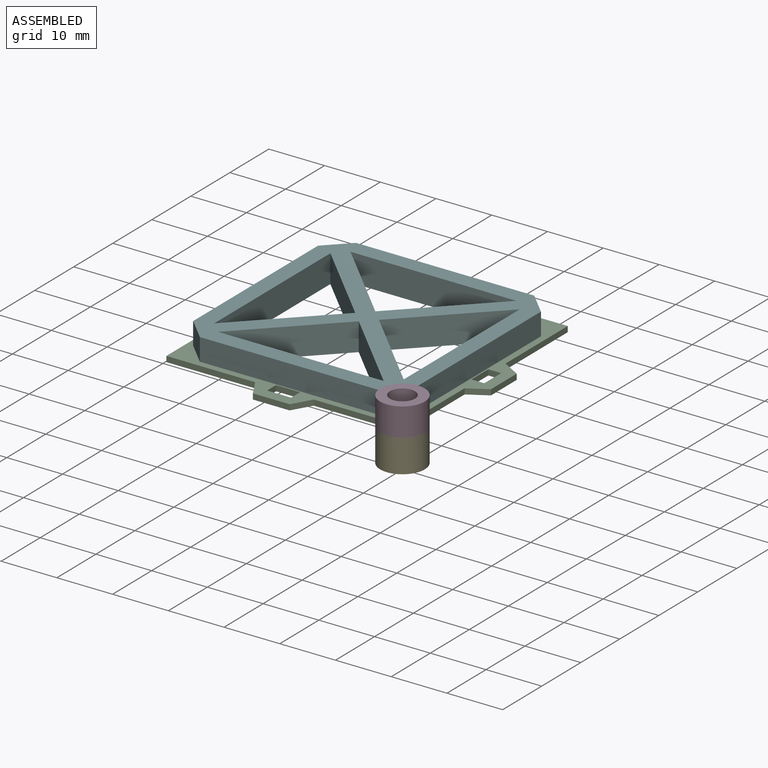
[diagram: assembled view]
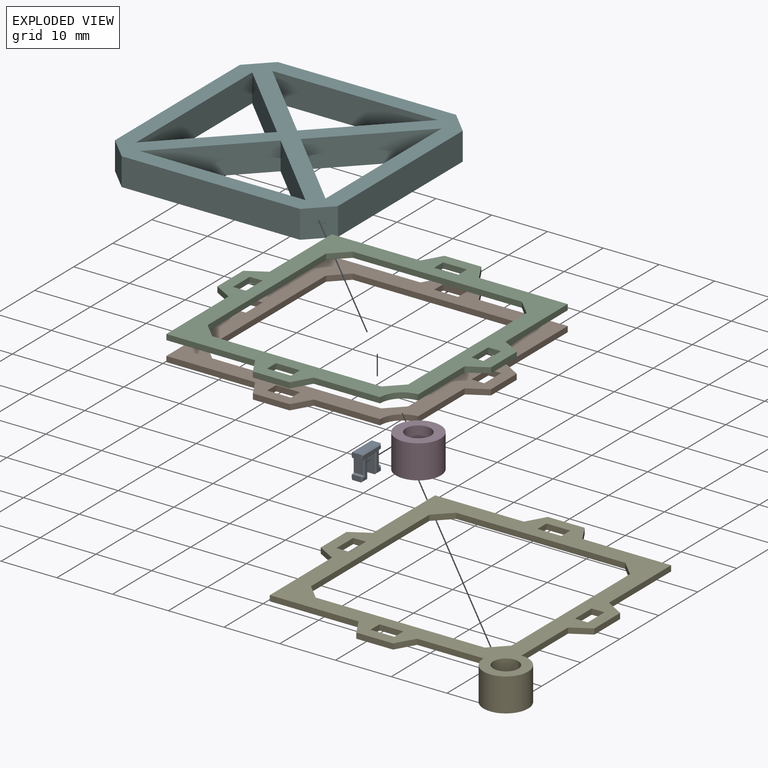
[diagram: exploded view]
GUIDED TOUR — FREECAD ASSEMBLY "Shade"

This assembly has 6 components, labeled P0..P5 below (a component is one placed body or linked part; the same part can appear more than once), held together by 0 modeled joints plus 14 derived contact edges. A joint is a constraint between two components; its type names the relative motion it leaves free:
  CONTACT — a derived adjacency edge — the two components touch in the source model (clearance under 2% of the assembly's diagonal); it is measured from the geometry, not a modeled constraint.
Axis/direction vectors are unit vectors and 'through' points are millimeter coordinates, both in the assembly's world frame.

MATES
  1. CONTACT "contact_0_1": P0 <-> P1, contact direction (0.000, 1.000, 0.000) through (-0.98, 3.16, 1.00) mm (derived from contact, not a modeled constraint)
  2. CONTACT "contact_0_2": P0 <-> P2, contact direction (0.000, 1.000, 0.000) through (-0.98, 3.16, 1.00) mm (derived from contact, not a modeled constraint)
  3. CONTACT "contact_0_3": P0 <-> P3, contact direction (0.000, 0.000, 1.000) through (-0.81, -2.05, 0.00) mm (derived from contact, not a modeled constraint)
  4. CONTACT "contact_0_4": P0 <-> P4, contact direction (-0.707, 0.707, -0.016) through (-0.96, 2.18, 0.90) mm (derived from contact, not a modeled constraint)
  5. CONTACT "contact_1_2": P1 <-> P2, contact direction (0.000, 0.000, 1.000) through (-42.36, 0.00, 0.00) mm (derived from contact, not a modeled constraint)
  6. CONTACT "contact_1_3": P1 <-> P3, contact direction (0.707, -0.707, 0.016) through (-4.00, 0.00, 0.00) mm (derived from contact, not a modeled constraint)
  7. CONTACT "contact_1_4": P1 <-> P4, contact direction (0.707, -0.707, 0.016) through (-42.36, 0.00, 0.00) mm (derived from contact, not a modeled constraint)
  8. CONTACT "contact_1_5": P1 <-> P5, contact direction (-0.707, 0.707, -0.016) through (-3.68, 36.21, 0.00) mm (derived from contact, not a modeled constraint)
  9. CONTACT "contact_2_3": P2 <-> P3, contact direction (0.707, -0.707, 0.016) through (-4.00, 0.00, 0.00) mm (derived from contact, not a modeled constraint)
  10. CONTACT "contact_2_4": P2 <-> P4, contact direction (0.707, -0.707, 0.016) through (-42.36, 0.00, 0.00) mm (derived from contact, not a modeled constraint)
  11. CONTACT "contact_2_5": P2 <-> P5, contact direction (-0.707, 0.707, -0.016) through (-3.68, 36.21, 0.00) mm (derived from contact, not a modeled constraint)
  12. CONTACT "contact_3_4": P3 <-> P4, contact direction (-0.707, 0.707, -0.016) through (-4.00, 0.00, 0.00) mm (derived from contact, not a modeled constraint)
  13. CONTACT "contact_3_5": P3 <-> P5, contact direction (-0.707, 0.707, -0.016) through (-1.04, 4.54, 0.00) mm (derived from contact, not a modeled constraint)
  14. CONTACT "contact_4_5": P4 <-> P5, contact direction (-0.707, 0.707, -0.016) through (-3.68, 36.21, 0.00) mm (derived from contact, not a modeled constraint)

ASSEMBLY ORDER
  1. P4 — the base component [order heuristic]
  2. P1 [order verified]
  3. P2 [order verified]
  4. P5 [order verified]
  5. P0 — core [order heuristic]
  6. P3 [order verified]
(P1, P2, P3, P5 verified with a relaxed clearance tolerance: the source model stores slight part interference there.)
Order-tag legend:
  [order verified] — this step's position reverses a verified removal order: the component was checked to insert without passing through the ones already placed.
  [order heuristic] — the first 2 components form the assembly's core: parts whose collision-free extraction could not be verified, listed in mate-graph order.

Of the 6 components, 5 carry a construction recipe — the FreeCAD feature program (sketches with constraints, then the solid features that consume them) that regenerates the part from scratch, quoted from this document or from the linked companion document it references; the rest are supplied as boundary geometry only. The tour below walks the components in assembly order: each is shown spotlighted twice — in the assembled view, then in the exploded view, where a leader line traces a displaced component back to its assembled socket (components that stay in place when exploded have no leader line; saturated green if recipe-attached, orange if geometry-only; every other component desaturated gray) — followed by its recipe or geometry summary and the mates that hold it.
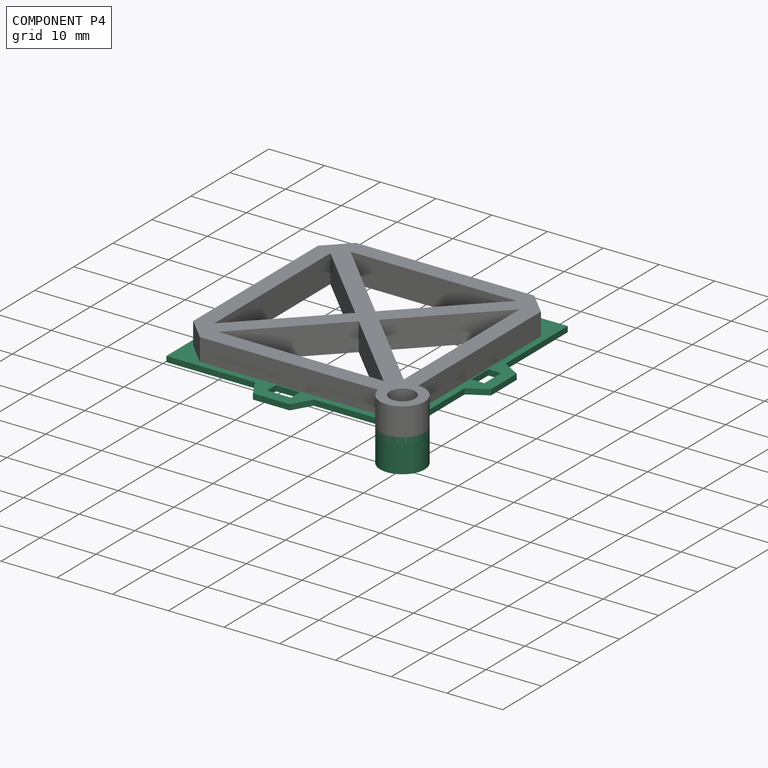
[diagram: component P4 — assembled]
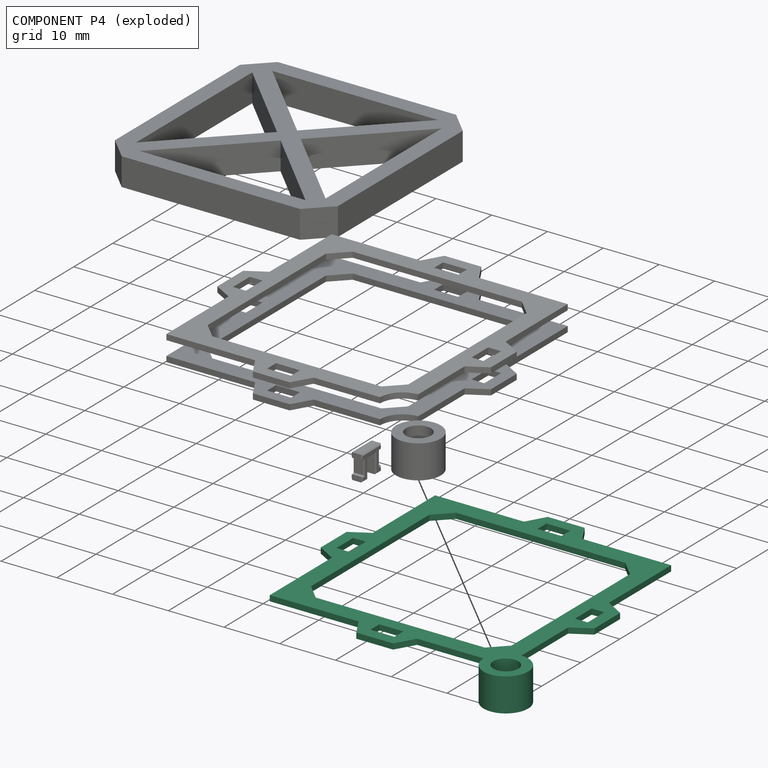
[diagram: component P4 — exploded]
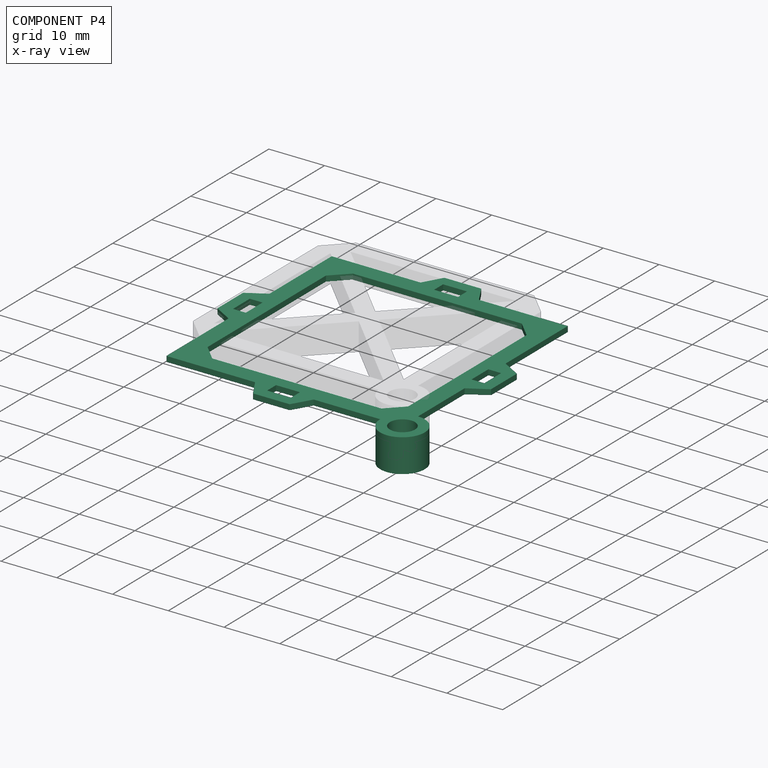
[diagram: component P4 — x-ray view]
COMPONENT P4 — recipe-attached ("ShadeFrameBottom", modeled in this document).
Held by: resting contact with P0 (derived edge); resting contact with P1 (derived edge); resting contact with P2 (derived edge); resting contact with P3 (derived edge); resting contact with P5 (derived edge).
Construction recipe (the document's own serialized feature program — sketch geometry with constraints, then the solid features built on it; lengths are millimeters unless a unit is written):

FEATURE [PartDesign::SubShapeBinder] Binder003
  BindCopyOnChange = 0
  BindMode = 0
  ClaimChildren = false
  Context = -> Body004 [Binder003.]
  Fuse = false
  MakeFace = true
  OffsetFill = false
  OffsetIntersection = false
  OffsetJoinType = 0
  OffsetOpenResult = false
  PartialLoad = false
  Relative = true
  Support = -> [Body002[Sketch008.]]
  _Version = 2
FEATURE [PartDesign::SubShapeBinder] Binder004
  BindCopyOnChange = 0
  BindMode = 0
  ClaimChildren = false
  Context = -> Body004 [Binder004.]
  Fuse = false
  MakeFace = true
  OffsetFill = false
  OffsetIntersection = false
  OffsetJoinType = 0
  OffsetOpenResult = false
  PartialLoad = false
  Relative = true
  Support = -> [Body002[Sketch009.]]
  _Version = 2
FEATURE [PartDesign::CoordinateSystem] Local_CS002  label="LCS_ShaftTop"
  AttacherType = Attacher::AttachEngine3D
  AttachmentSupport = -> [Binder003]
  MapMode = 5
  Placement = pos=(0,0,1) rot=(0,0,1;0rad)
FEATURE [PartDesign::CoordinateSystem] Local_CS003  label="LCS_ShaftBottom"
  AttacherType = Attacher::AttachEngine3D
  AttachmentOffset = pos=(0,0,-6) rot=(0,0,1;0rad)
  AttachmentSupport = -> [Binder003]
  MapMode = 5
  Placement = pos=(0,0,-5) rot=(0,0,1;0rad)
  expr: .AttachmentOffset.Base.z = -<<Dimensions>>.shade_spacer_length
FEATURE [PartDesign::FeatureBase] BaseFeature
  BaseFeature = -> Body002
  Suppressed = false
FEATURE [PartDesign::Pad] Pad007
  BaseFeature = -> BaseFeature
  Direction = (0,0,1)
  Length = 6
  Length2 = 10
  Profile = -> Binder004
  Reversed = true
  Suppressed = false
  Type = 0
  expr: Length = <<Dimensions>>.shade_spacer_length
FEATURE [PartDesign::Hole] Hole001
  BaseFeature = -> Pad007
  CustomThreadClearance = 0
  Depth = 135.934
  DepthType = 1
  Diameter = 4.5
  DrillForDepth = false
  DrillPoint = 1
  DrillPointAngle = 118
  HoleCutCountersinkAngle = 90
  HoleCutCustomValues = false
  HoleCutDepth = 0
  HoleCutDiameter = 6.1
  HoleCutType = 0
  ModelThread = false
  Profile = -> Binder003
  Suppressed = false
  Tapered = false
  TaperedAngle = 90
  ThreadClass = 0
  ThreadDepth = 135.934
  ThreadDepthType = 0
  ThreadDirection = 0
  ThreadFit = 0
  ThreadSize = 11
  ThreadType = 1
  Threaded = false
  UseCustomThreadClearance = false
  expr: ThreadSize = <<Dimensions>>.shade_shaft_type
FEATURE [PartDesign::Body] Body004  label="ShadeFrameBottom"
  AllowCompound = false
  BaseFeature = -> Body002
  Group = -> [BaseFeature,Binder003,Binder004,Pad007,Hole001,Local_CS002,Local_CS003]
  Origin = -> Origin005
  Tip = -> Hole001
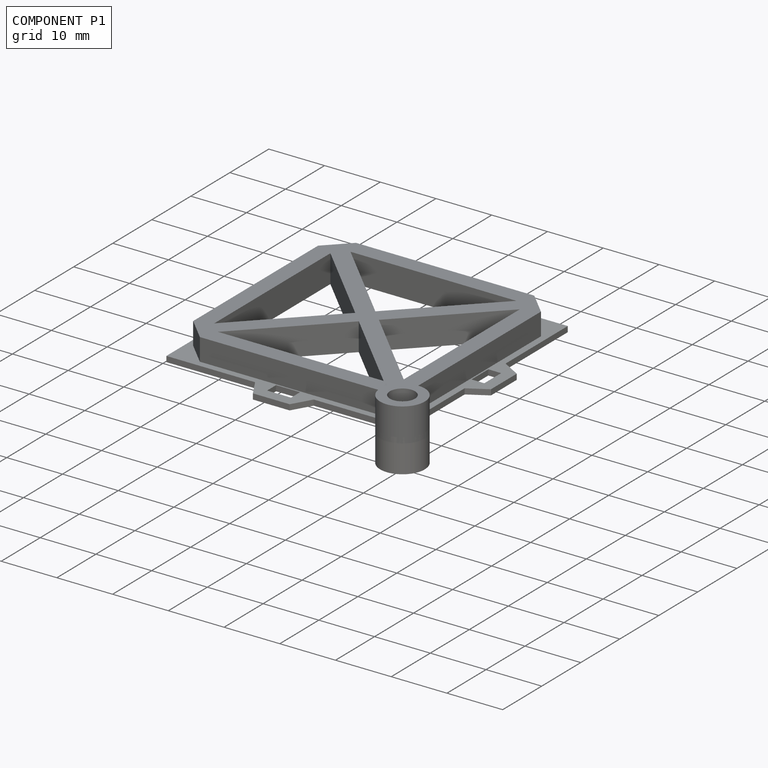
[diagram: component P1 — assembled]
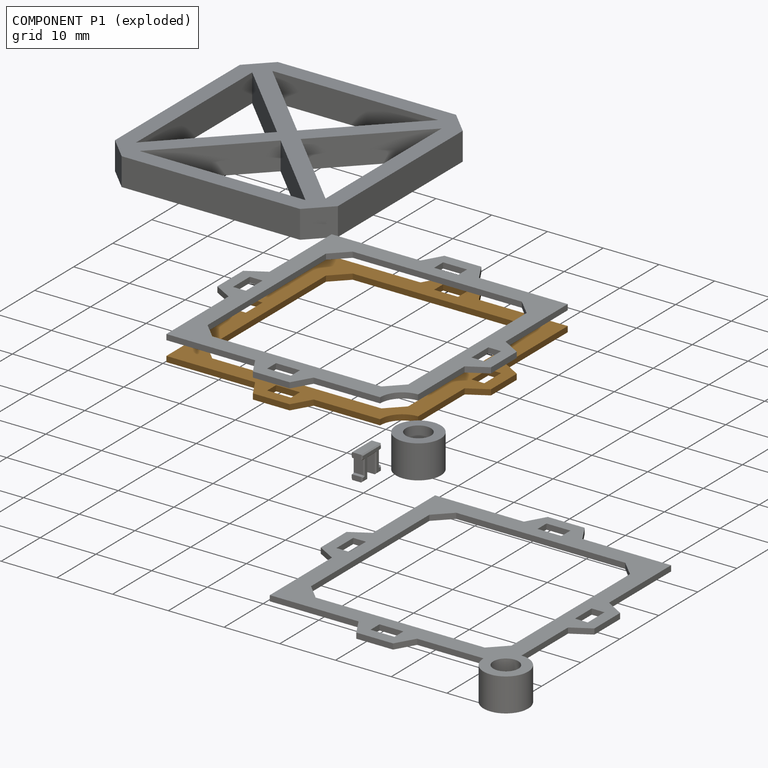
[diagram: component P1 — exploded]
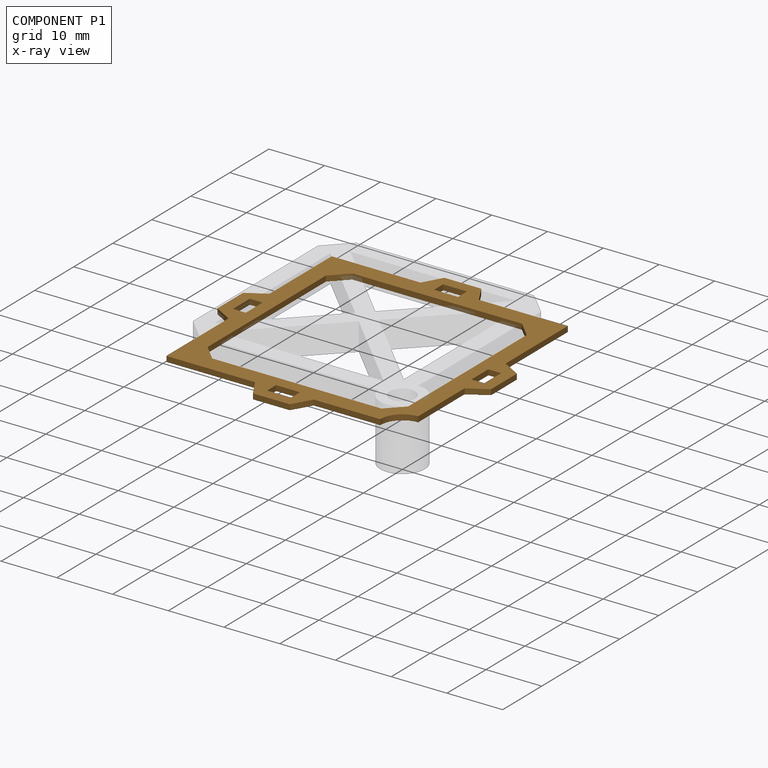
[diagram: component P1 — x-ray view]
COMPONENT P1 — geometry summary ("ShadeFrameTop"; no construction recipe available for this part):
  bounding box: 49.1 x 49.1 x 1.0 mm
  tessellated surface: 320 triangles
  volume: 578 mm^3 (24% of its bounding box)
  symmetry: mirror-symmetric across its z mid-plane
Held by: resting contact with P0 (derived edge); resting contact with P2 (derived edge); resting contact with P3 (derived edge); resting contact with P4 (derived edge); resting contact with P5 (derived edge).
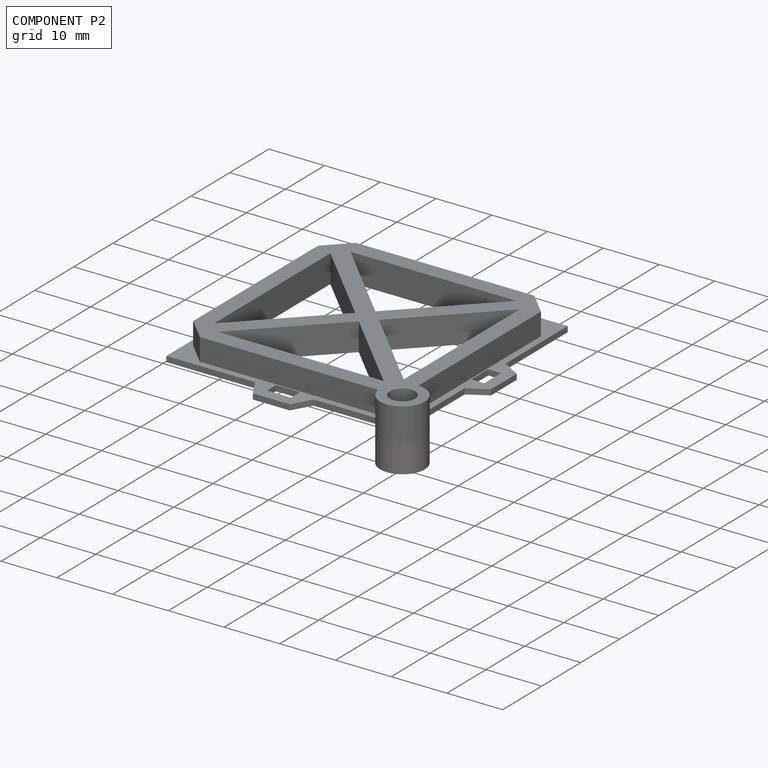
[diagram: component P2 — assembled]
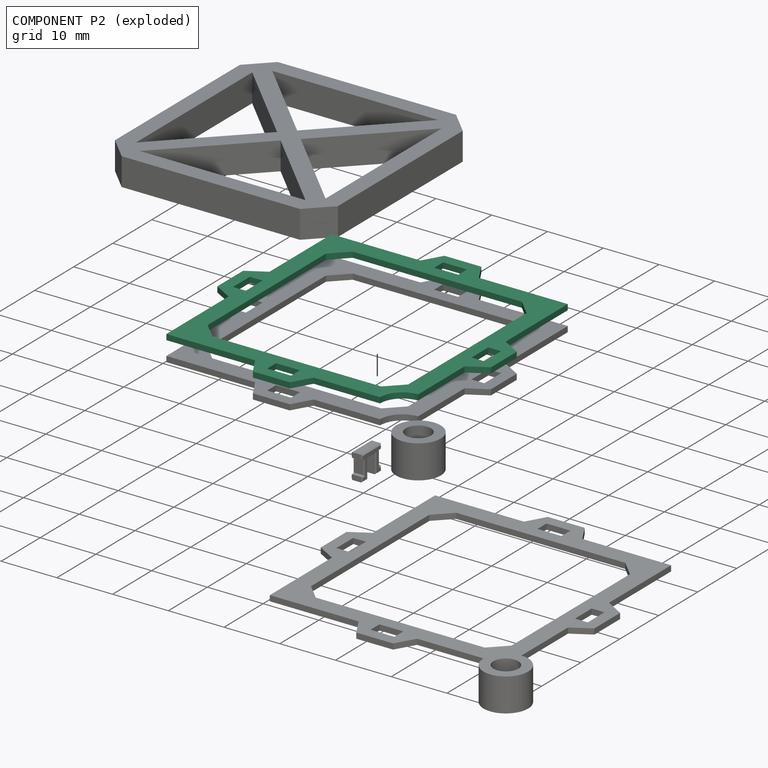
[diagram: component P2 — exploded]
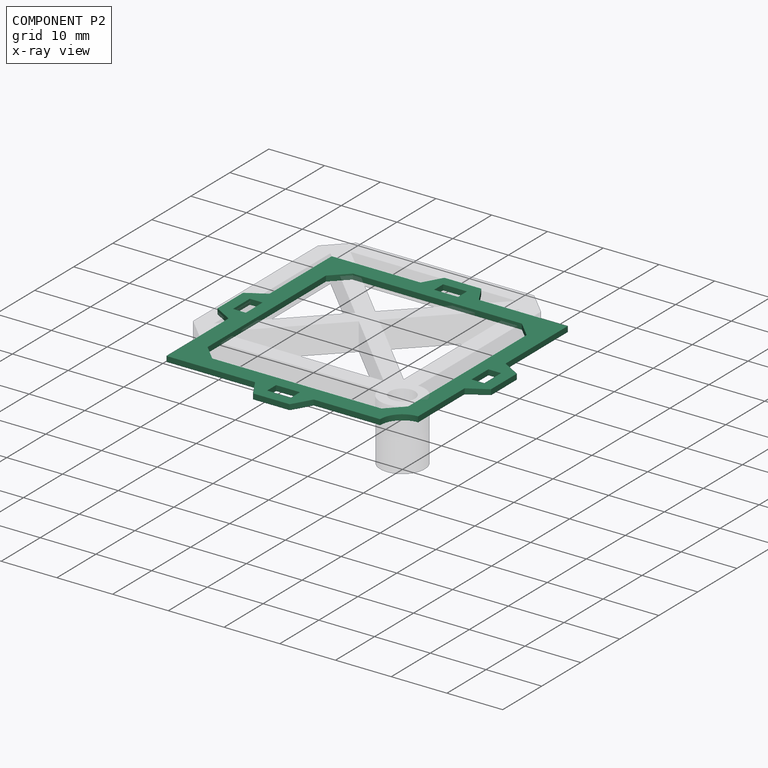
[diagram: component P2 — x-ray view]
COMPONENT P2 — recipe-attached ("ShadeFrameBase", modeled in this document).
Held by: resting contact with P0 (derived edge); resting contact with P1 (derived edge); resting contact with P3 (derived edge); resting contact with P4 (derived edge); resting contact with P5 (derived edge).
Construction recipe (the document's own serialized feature program — sketch geometry with constraints, then the solid features built on it; lengths are millimeters unless a unit is written):

FEATURE [PartDesign::Plane] DatumPlane003  label="Plane_Bottom001"
  AttachmentSupport = -> [XY_Plane002]
  Length = 60
  MapMode = 5
  ResizeMode = 0
  Width = 60
FEATURE [PartDesign::Plane] DatumPlane002  label="Plane_Top001"
  AttachmentOffset = pos=(0,0,1) rot=(0,0,1;0rad)
  AttachmentSupport = -> [DatumPlane003]
  Length = 60
  MapMode = 5
  Placement = pos=(0,0,1) rot=(0,0,1;0rad)
  ResizeMode = 0
  Width = 60
  expr: .AttachmentOffset.Base.z = <<Dimensions>>.shade_frame_thickness / 2
FEATURE [Sketcher::SketchObject] Sketch008  label="Sketch_Shaft001"
  ArcFitTolerance = 0
  AttachmentSupport = -> [DatumPlane002]
  FullyConstrained = true
  MakeInternals = false
  MapMode = 5
  Placement = pos=(0,0,1) rot=(0,0,1;0rad)
  expr: Constraints[1] = <<Dimensions>>.shade_shaft_diameter
  sketch-geometry (1):
    g0: Circle CenterX=0 CenterY=0 CenterZ=0 NormalX=0 NormalY=0 NormalZ=1 AngleXU=0 Radius=2
  constraints (2):
    c: Coincident(g0,g-1)
    c: Diameter(g0) = 4
FEATURE [Sketcher::SketchObject] Sketch009  label="Sketch_Spacer001"
  ArcFitTolerance = 0
  AttachmentSupport = -> [DatumPlane002]
  FullyConstrained = true
  MakeInternals = false
  MapMode = 5
  Placement = pos=(0,0,1) rot=(0,0,1;0rad)
  expr: Constraints[1] = <<Dimensions>>.shade_shaft_diameter + 4 mm
  sketch-geometry (1):
    g0: Circle CenterX=0 CenterY=0 CenterZ=0 NormalX=0 NormalY=0 NormalZ=1 AngleXU=0 Radius=4
  constraints (2):
    c: Coincident(g0,g-1)
    c: Diameter(g0) = 8
FEATURE [Sketcher::SketchObject] Sketch003  label="Sketch_Shade"
  ArcFitTolerance = 0
  AttachmentSupport = -> [DatumPlane003]
  ExternalGeometry = -> [Sketch009]
  FullyConstrained = true
  MakeInternals = false
  MapMode = 5
  expr: Constraints[16] = <<Dimensions>>.shade_height
  expr: Constraints[17] = <<Dimensions>>.shade_width
  sketch-geometry (13):
    g0: LineSegment StartX=-41.182 StartY=37.182 StartZ=0 EndX=-41.182 EndY=5.18198 EndZ=0
    g1: LineSegment StartX=-37.182 StartY=1.18198 StartZ=0 EndX=-5.18198 EndY=1.18198 EndZ=0
    g2: LineSegment StartX=-1.18198 StartY=5.18198 StartZ=0 EndX=-1.18198 EndY=37.182 EndZ=0
    g3: LineSegment StartX=-5.18198 StartY=41.182 StartZ=0 EndX=-37.182 EndY=41.182 EndZ=0
    g4: GeomPoint [constr] X=0 Y=0 Z=0
    g5: LineSegment StartX=-41.182 StartY=37.182 StartZ=0 EndX=-37.182 EndY=41.182 EndZ=0
    g6: LineSegment StartX=-5.18198 StartY=41.182 StartZ=0 EndX=-1.18198 EndY=37.182 EndZ=0
    g7: LineSegment StartX=-5.18198 StartY=1.18198 StartZ=0 EndX=-1.18198 EndY=5.18198 EndZ=0
    g8: LineSegment StartX=-41.182 StartY=5.18198 StartZ=0 EndX=-37.182 EndY=1.18198 EndZ=0
    g9: LineSegment [constr] StartX=-3.18198 StartY=3.18198 StartZ=0 EndX=-2.82843 EndY=2.82843 EndZ=0
    g10: LineSegment [constr] StartX=-5.18198 StartY=1.18198 StartZ=0 EndX=-5.18198 EndY=0 EndZ=0
    g11: LineSegment [constr] StartX=-1.18198 StartY=5.18198 StartZ=0 EndX=0 EndY=5.18198 EndZ=0
    g12: GeomPoint X=-21.182 Y=21.182 Z=0
  constraints (35):
    c: Horizontal(g1)
    c: Horizontal(g3)
    c: Vertical(g0)
    c: Vertical(g2)
    c: Coincident(g4,g-1)
    c: Coincident(g0,g8)
    c: Coincident(g1,g8)
    c: Coincident(g0,g5)
    c: Coincident(g3,g5)
    c: Coincident(g3,g6)
    c: Coincident(g2,g6)
    c: Coincident(g2,g7)
    c: Coincident(g1,g7)
    c: Equal(g7,g6)
    c: Equal(g6,g5)
    c: Equal(g5,g8)
    c: DistanceY(g1,g3) = 40
    c: DistanceX(g0,g2) = 40
    c: Equal(g1,g3)
    c: Equal(g0,g2)
    c: Angle(g8,g0) = 2.35619
    c: Angle(g0,g5) = 2.35619
    c: DistanceY(g1,g0) = 4
    c: PointOnObject(g9,g-3)
    c: Symmetric(g1,g2,g9)
    c: Perpendicular(g9,g7)
    c: Coincident(g10,g1)
    c: PointOnObject(g10,g-1)
    c: Vertical(g10)
    c: Coincident(g11,g2)
    c: PointOnObject(g11,g-2)
    c: Horizontal(g11)
    c: Equal(g11,g10)
    c: Distance(g9) = 0.5
    c: Symmetric(g0,g2,g12)
FEATURE [Sketcher::SketchObject] Sketch011
  ArcFitTolerance = 0
  AttachmentSupport = -> [DatumPlane002]
  ExternalGeometry = -> [Sketch003]
  FullyConstrained = true
  MakeInternals = false
  MapMode = 5
  Placement = pos=(0,0,1) rot=(0,0,1;0rad)
  expr: Constraints[13] = <<Dimensions>>.clearance_loose_fit
  expr: Constraints[7] = <<Dimensions>>.shade_clip_width + 2 * <<Dimensions>>.clearance_tight_fit
  expr: Constraints[8] = <<Dimensions>>.shade_clip_length + 2 * <<Dimensions>>.clearance_tight_fit
  sketch-geometry (7):
    g0: LineSegment StartX=-41.432 StartY=19.032 StartZ=0 EndX=-41.432 EndY=23.332 EndZ=0
    g1: LineSegment StartX=-41.432 StartY=23.332 StartZ=0 EndX=-43.732 EndY=23.332 EndZ=0
    g2: LineSegment StartX=-43.732 StartY=23.332 StartZ=0 EndX=-43.732 EndY=19.032 EndZ=0
    g3: LineSegment StartX=-43.732 StartY=19.032 StartZ=0 EndX=-41.432 EndY=19.032 EndZ=0
    g4: GeomPoint [constr] X=-41.182 Y=21.182 Z=0
    g5: LineSegment [constr] StartX=-41.432 StartY=21.182 StartZ=0 EndX=-41.182 EndY=21.182 EndZ=0
    g6: GeomPoint X=-42.582 Y=21.182 Z=0
  constraints (16):
    c: Coincident(g1,g0)
    c: Coincident(g2,g1)
    c: Coincident(g3,g0)
    c: Coincident(g3,g2)
    c: Perpendicular(g1,g2)
    c: Perpendicular(g1,g0)
    c: Perpendicular(g3,g0)
    c: Distance(g3) = 2.3
    c: Distance(g2) = 4.3
    c: Symmetric(g-3,g-3,g4)
    c: Coincident(g5,g4)
    c: Symmetric(g0,g0,g5)
    c: Horizontal(g5)
    c: Distance(g5) = 0.25
    c: Parallel(g0,g-3)
    c: Symmetric(g1,g0,g6)
FEATURE [PartDesign::Line] DatumLine  label="Line_FilterCenter"
  AttacherType = Attacher::AttachEngineLine
  AttachmentSupport = -> [Sketch003,DatumPlane003]
  Length = 20
  MapMode = 46
  Placement = pos=(-21.182,21.182,0) rot=(0,0,1;3.14159rad)
  ResizeMode = 0
FEATURE [Sketcher::SketchObject] Sketch010  label="Sketch_Frame"
  ArcFitTolerance = 0
  AttachmentSupport = -> [DatumPlane003]
  ExternalGeometry = -> [Sketch009,Sketch003,DatumLine]
  FullyConstrained = true
  MakeInternals = false
  MapMode = 5
  sketch-geometry (21):
    g0: LineSegment StartX=-36.3536 StartY=39.182 StartZ=0 EndX=-6.01041 EndY=39.182 EndZ=0
    g1: LineSegment StartX=-3.18198 StartY=36.3536 StartZ=0 EndX=-3.18198 EndY=6.01041 EndZ=0
    g2: LineSegment StartX=-6.01041 StartY=3.18198 StartZ=0 EndX=-36.3536 EndY=3.18198 EndZ=0
    g3: LineSegment StartX=-39.182 StartY=6.01041 StartZ=0 EndX=-39.182 EndY=36.3536 EndZ=0
    g4: LineSegment StartX=-42.364 StartY=42.364 StartZ=0 EndX=0 EndY=42.364 EndZ=0
    g5: LineSegment StartX=-42.364 StartY=5e-16 StartZ=0 EndX=-42.364 EndY=42.364 EndZ=0
    g6: LineSegment StartX=2e-16 StartY=42.364 StartZ=0 EndX=2e-16 EndY=4 EndZ=0
    g7: LineSegment StartX=-4 StartY=5e-16 StartZ=0 EndX=-42.364 EndY=5e-16 EndZ=0
    g8: ArcOfCircle CenterX=0 CenterY=0 CenterZ=0 NormalX=0 NormalY=0 NormalZ=1 AngleXU=0 Radius=4 StartAngle=1.5708 EndAngle=3.14159
    g9: LineSegment StartX=-39.182 StartY=36.3536 StartZ=0 EndX=-36.3536 EndY=39.182 EndZ=0
    g10: LineSegment StartX=-6.01041 StartY=39.182 StartZ=0 EndX=-3.18198 EndY=36.3536 EndZ=0
    g11: LineSegment StartX=-3.18198 StartY=6.01041 StartZ=0 EndX=-6.01041 EndY=3.18198 EndZ=0
    g12: LineSegment StartX=-39.182 StartY=6.01041 StartZ=0 EndX=-36.3536 EndY=3.18198 EndZ=0
    g13: LineSegment [constr] StartX=-39.182 StartY=36.3536 StartZ=0 EndX=-41.182 EndY=36.3536 EndZ=0
    g14: LineSegment [constr] StartX=-36.3536 StartY=39.182 StartZ=0 EndX=-36.3536 EndY=41.182 EndZ=0
    g15: LineSegment [constr] StartX=-39.182 StartY=36.3536 StartZ=0 EndX=-40.5962 EndY=37.7678 EndZ=0
    g16: LineSegment [constr] StartX=-6.01041 StartY=39.182 StartZ=0 EndX=-4.59619 EndY=40.5962 EndZ=0
    g17: LineSegment [constr] StartX=-3.18198 StartY=36.3536 StartZ=0 EndX=-1.18198 EndY=36.3536 EndZ=0
    g18: LineSegment [constr] StartX=-3.18198 StartY=6.01041 StartZ=0 EndX=-1.76777 EndY=4.59619 EndZ=0
    g19: LineSegment [constr] StartX=-6.01041 StartY=3.18198 StartZ=0 EndX=-6.01041 EndY=1.18198 EndZ=0
    g20: LineSegment [constr] StartX=-41.182 StartY=5.18198 StartZ=0 EndX=-39.7678 EndY=6.59619 EndZ=0
  constraints (63):
    c: Horizontal(g0)
    c: Horizontal(g2)
    c: Vertical(g1)
    c: Vertical(g3)
    c: Horizontal(g4)
    c: Vertical(g5)
    c: Vertical(g6)
    c: Horizontal(g7)
    c: PointOnObject(g6,g-3)
    c: Coincident(g8,g-3)
    c: Coincident(g8,g7)
    c: Coincident(g8,g6)
    c: Coincident(g3,g9)
    c: Coincident(g0,g9)
    c: Parallel(g-7,g9)
    c: Coincident(g13,g3)
    c: PointOnObject(g13,g-6)
    c: Horizontal(g13)
    c: Coincident(g14,g0)
    c: PointOnObject(g14,g-8)
    c: Vertical(g14)
    c: Coincident(g15,g3)
    c: PointOnObject(g15,g-7)
    c: Perpendicular(g-7,g15)
    c: Coincident(g3,g12)
    c: Coincident(g2,g12)
    c: Coincident(g1,g11)
    c: Coincident(g2,g11)
    c: Coincident(g0,g10)
    c: Coincident(g1,g10)
    c: Equal(g13,g15)
    c: Equal(g15,g14)
    c: Distance(g14) = 2
    c: Parallel(g10,g-9)
    c: Coincident(g16,g0)
    c: PointOnObject(g16,g-9)
    c: Perpendicular(g-9,g16)
    c: Equal(g16,g14)
    c: Coincident(g17,g1)
    c: PointOnObject(g17,g-5)
    c: Horizontal(g17)
    c: Equal(g17,g16)
    c: Parallel(g-11,g11)
    c: Coincident(g18,g1)
    c: PointOnObject(g18,g-11)
    c: Perpendicular(g18,g-11)
    c: Equal(g18,g17)
    c: Coincident(g19,g2)
    c: PointOnObject(g19,g-4)
    c: Vertical(g19)
    c: Equal(g19,g18)
    c: Parallel(g-10,g12)
    c: Coincident(g20,g-10)
    c: PointOnObject(g20,g12)
    c: Perpendicular(g-10,g20)
    c: Equal(g20,g13)
    c: PointOnObject(g7,g-1)
    c: PointOnObject(g6,g-2)
    c: DistanceX(g5,g6) = 42.364  'total_width'
    c: Coincident(g5,g7)
    c: Coincident(g4,g5)
    c: Symmetric(g4,g8,g-12)
    c: Coincident(g6,g4)
FEATURE [PartDesign::Pad] Pad005
  Direction = (0,0,1)
  Length = 10
  Length2 = 10
  Profile = -> Sketch010
  ReferenceAxis = -> Sketch010 [N_Axis]
  Suppressed = false
  Type = 3
  UpToFace = -> DatumPlane002
FEATURE [Sketcher::SketchObject] Sketch013
  ArcFitTolerance = 0
  AttachmentSupport = -> [DatumPlane003]
  ExternalGeometry = -> [Sketch003,Sketch011]
  FullyConstrained = true
  MakeInternals = false
  MapMode = 5
  sketch-geometry (9):
    g0: LineSegment StartX=-45.732 StartY=24.4867 StartZ=0 EndX=-41.182 EndY=27.1136 EndZ=0
    g1: LineSegment StartX=-45.732 StartY=24.4867 StartZ=0 EndX=-45.732 EndY=17.8773 EndZ=0
    g2: LineSegment StartX=-45.732 StartY=17.8773 StartZ=0 EndX=-41.182 EndY=15.2503 EndZ=0
    g3: LineSegment StartX=-41.182 StartY=27.1136 StartZ=0 EndX=-41.182 EndY=15.2503 EndZ=0
    g4: GeomPoint [constr] X=-45.732 Y=21.182 Z=0
    g5: GeomPoint [constr] X=-41.182 Y=21.182 Z=0
    g6: GeomPoint [constr] X=-42.582 Y=21.182 Z=0
    g7: GeomPoint [constr] X=-44.732 Y=17.2999 Z=0
    g8: LineSegment [constr] StartX=-43.732 StartY=19.032 StartZ=0 EndX=-44.732 EndY=17.2999 EndZ=0
  constraints (19):
    c: Coincident(g1,g0)
    c: Vertical(g1)
    c: Coincident(g2,g1)
    c: PointOnObject(g0,g-3)
    c: PointOnObject(g2,g-3)
    c: DistanceX(g0,g-5) = 2
    c: Coincident(g3,g0)
    c: Coincident(g3,g2)
    c: Symmetric(g-5,g-7,g6)
    c: Symmetric(g0,g2,g5)
    c: Symmetric(g0,g1,g4)
    c: Horizontal(g4,g6)
    c: Horizontal(g6,g5)
    c: Angle(g0,g3) = 1.0472
    c: PointOnObject(g7,g2)
    c: Distance(g7,g-6) = 2
    c: Coincident(g8,g-6)
    c: Coincident(g8,g7)
    c: Perpendicular(g2,g8)
FEATURE [PartDesign::Pad] Pad009
  BaseFeature = -> Pad005
  Direction = (0,0,1)
  Length = 10
  Length2 = 10
  Profile = -> Sketch013
  ReferenceAxis = -> Sketch013 [N_Axis]
  Suppressed = false
  Type = 3
  UpToFace = -> DatumPlane002
FEATURE [PartDesign::Pocket] Pocket001
  BaseFeature = -> Pad009
  Direction = (0,0,-1)
  Length = 5
  Length2 = 5
  Profile = -> Sketch011
  ReferenceAxis = -> Sketch011 [N_Axis]
  Suppressed = false
  Type = 1
FEATURE [PartDesign::PolarPattern] PolarPattern
  Angle = 360
  Axis = -> DatumLine
  BaseFeature = -> Pocket001
  Mode = 0
  Occurrences = 4
  Offset = 120
  Originals = -> [Pad009,Pocket001]
  Refine = true
  Reversed = true
  Suppressed = false
  TransformMode = 0
FEATURE [PartDesign::CoordinateSystem] Local_CS005  label="LCS_Clip1"
  AttacherType = Attacher::AttachEngine3D
  AttachmentSupport = -> [Sketch011]
  MapMode = 1
  Placement = pos=(-42.582,21.182,1) rot=(0,0,1;0rad)
FEATURE [PartDesign::Body] Body002  label="ShadeFrameBase"
  AllowCompound = false
  Group = -> [DatumPlane002,DatumPlane003,Sketch003,DatumLine,Sketch008,Sketch009,Sketch010,Pad005,Sketch011,Sketch013,Pad009,Pocket001,PolarPattern,Local_CS005]
  Origin = -> Origin002
  Tip = -> PolarPattern
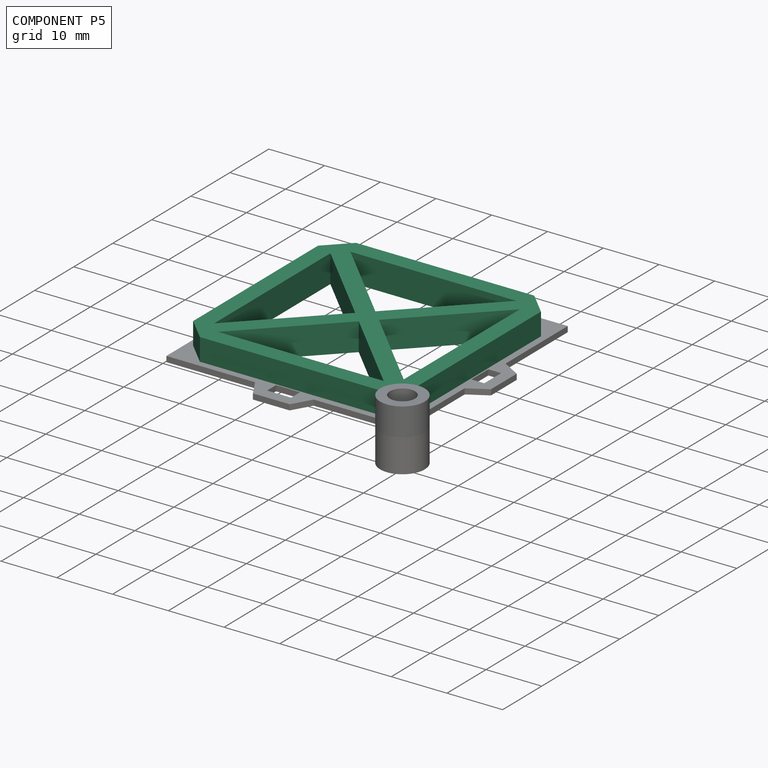
[diagram: component P5 — assembled]
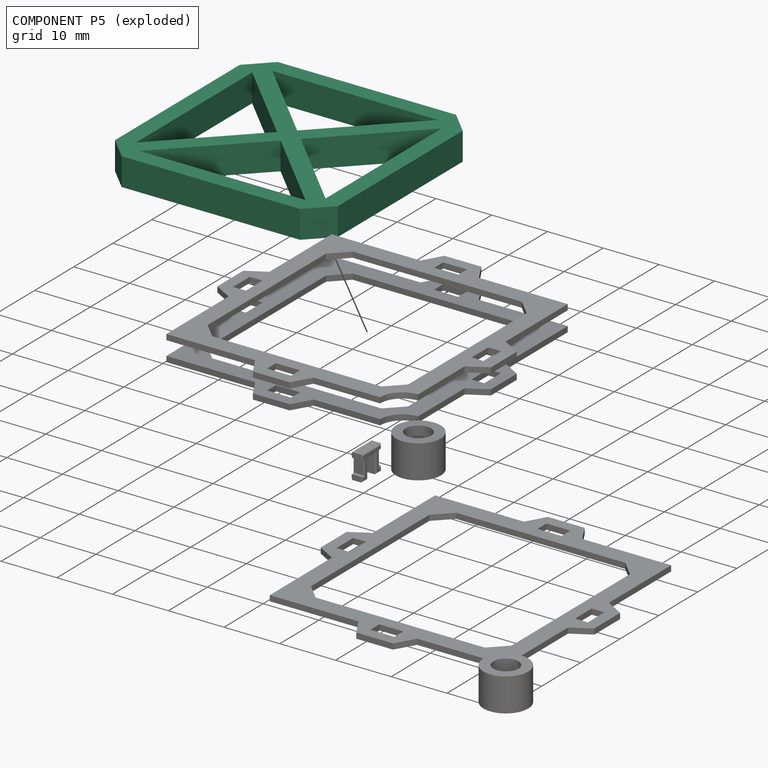
[diagram: component P5 — exploded]
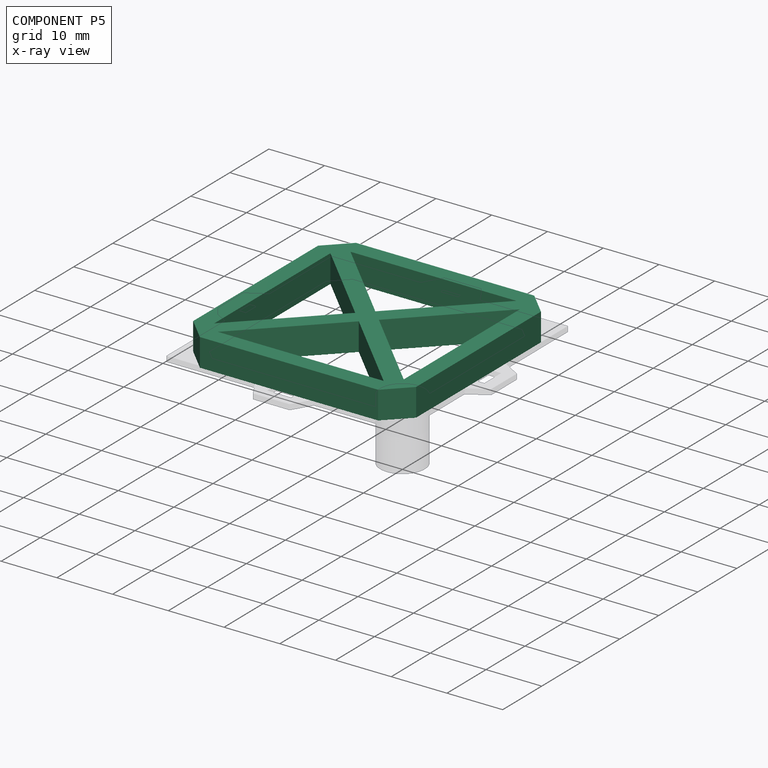
[diagram: component P5 — x-ray view]
COMPONENT P5 — recipe-attached ("ShadeStencil", modeled in this document).
Held by: resting contact with P1 (derived edge); resting contact with P2 (derived edge); resting contact with P3 (derived edge); resting contact with P4 (derived edge).
Construction recipe (the document's own serialized feature program — sketch geometry with constraints, then the solid features built on it; lengths are millimeters unless a unit is written):

FEATURE [PartDesign::SubShapeBinder] Binder
  BindCopyOnChange = 0
  BindMode = 0
  ClaimChildren = false
  Context = -> Body005 [Binder.]
  Fuse = false
  MakeFace = true
  OffsetFill = false
  OffsetIntersection = false
  OffsetJoinType = 0
  OffsetOpenResult = false
  PartialLoad = false
  Relative = true
  Support = -> [Body002[Sketch003.]]
  _Version = 2
FEATURE [PartDesign::Pad] Pad008
  Direction = (0,0,1)
  Length = 5
  Length2 = 10
  Profile = -> Binder
  Suppressed = false
  Type = 0
FEATURE [Sketcher::SketchObject] Sketch012
  ArcFitTolerance = 0
  AttachmentSupport = -> [XY_Plane006]
  ExternalGeometry = -> [Binder]
  FullyConstrained = true
  MakeInternals = false
  MapMode = 5
  sketch-geometry (10):
    g0: LineSegment StartX=-6.3033 StartY=4.18198 StartZ=0 EndX=-36.0607 EndY=4.18198 EndZ=0
    g1: LineSegment StartX=-36.0607 StartY=4.18198 StartZ=0 EndX=-21.182 EndY=19.0607 EndZ=0
    g2: LineSegment StartX=-6.3033 StartY=4.18198 StartZ=0 EndX=-21.182 EndY=19.0607 EndZ=0
    g3: LineSegment [constr] StartX=-41.182 StartY=21.182 StartZ=0 EndX=-1.18198 EndY=21.182 EndZ=0
    g4: GeomPoint [constr] X=-21.182 Y=21.182 Z=0
    g5: LineSegment [constr] StartX=-21.182 StartY=21.182 StartZ=0 EndX=-39.182 EndY=3.18198 EndZ=0
    g6: LineSegment [constr] StartX=-21.182 StartY=21.182 StartZ=0 EndX=-3.18198 EndY=3.18198 EndZ=0
    g7: LineSegment [constr] StartX=-36.0607 StartY=4.18198 StartZ=0 EndX=-37.1213 EndY=5.24264 EndZ=0
    g8: LineSegment [constr] StartX=-36.0607 StartY=4.18198 StartZ=0 EndX=-36.0607 EndY=1.18198 EndZ=0
    g9: LineSegment [constr] StartX=-21.182 StartY=19.0607 StartZ=0 EndX=-20.1213 EndY=20.1213 EndZ=0
  constraints (25):
    c: Coincident(g1,g0)
    c: Coincident(g2,g0)
    c: Coincident(g2,g1)
    c: Symmetric(g-9,g-4,g3)
    c: Symmetric(g-8,g-7,g3)
    c: Symmetric(g3,g3,g4)
    c: Coincident(g5,g4)
    c: Coincident(g6,g4)
    c: Symmetric(g-4,g-5,g5)
    c: Symmetric(g-6,g-7,g6)
    c: Parallel(g5,g1)
    c: Parallel(g2,g6)
    c: Parallel(g0,g-5)
    c: Coincident(g7,g0)
    c: PointOnObject(g7,g5)
    c: Coincident(g8,g0)
    c: PointOnObject(g8,g-5)
    c: Coincident(g9,g1)
    c: PointOnObject(g9,g6)
    c: Perpendicular(g6,g9)
    c: Perpendicular(g7,g5)
    c: Perpendicular(g-5,g8)
    c: Equal(g7,g9)
    c: Distance(g8) = 3
    c: Distance(g7) = 1.5
FEATURE [PartDesign::Pocket] Pocket
  BaseFeature = -> Pad008
  Direction = (0,0,-1)
  Length = 5
  Length2 = 5
  Profile = -> Sketch012
  ReferenceAxis = -> Sketch012 [N_Axis]
  Reversed = true
  Suppressed = false
  Type = 1
FEATURE [PartDesign::SubShapeBinder] Binder005
  BindCopyOnChange = 0
  BindMode = 0
  ClaimChildren = false
  Context = -> Body005 [Binder005.]
  Fuse = false
  MakeFace = true
  OffsetFill = false
  OffsetIntersection = false
  OffsetJoinType = 0
  OffsetOpenResult = false
  PartialLoad = false
  Relative = true
  Support = -> [Body002[DatumLine.]]
  _Version = 2
FEATURE [PartDesign::PolarPattern] PolarPattern001
  Angle = 360
  Axis = -> Binder005 [Edge1]
  BaseFeature = -> Pocket
  Mode = 0
  Occurrences = 4
  Offset = 120
  Originals = -> [Pocket]
  Suppressed = false
  TransformMode = 0
FEATURE [PartDesign::Body] Body005  label="ShadeStencil"
  AllowCompound = false
  Group = -> [Binder,Pad008,Sketch012,Pocket,Binder005,PolarPattern001]
  Origin = -> Origin006
  Tip = -> PolarPattern001
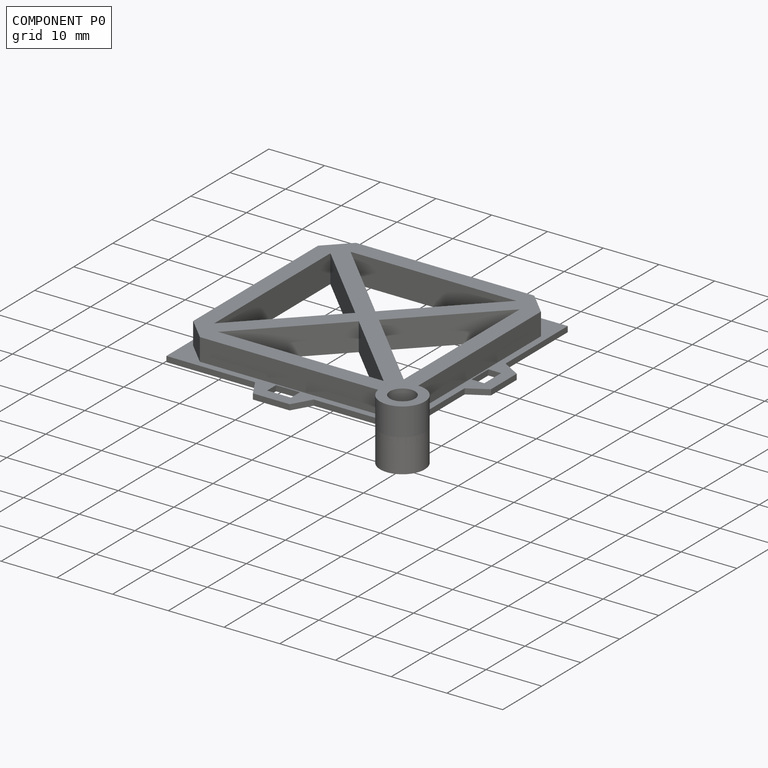
[diagram: component P0 — assembled]
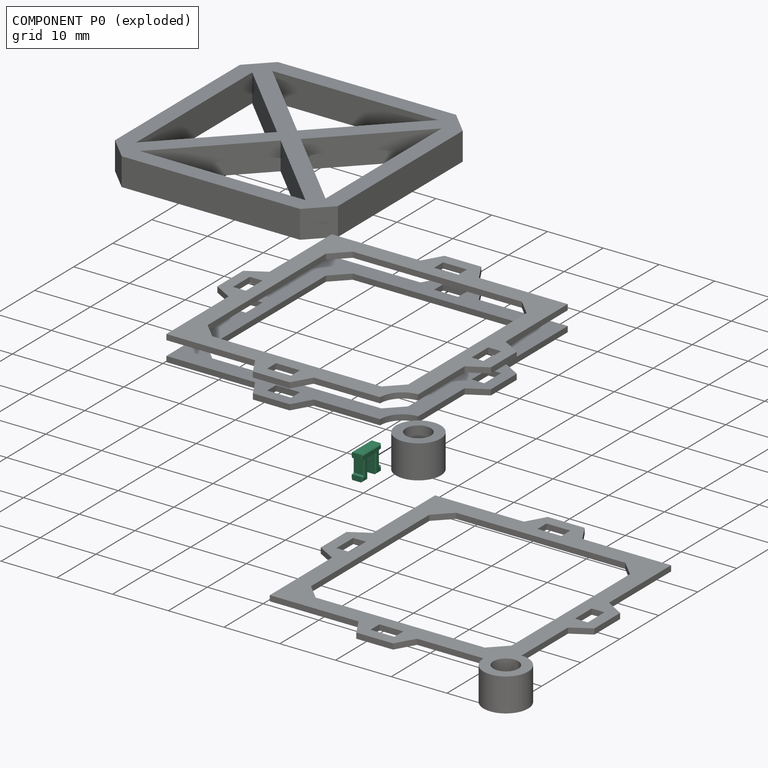
[diagram: component P0 — exploded]
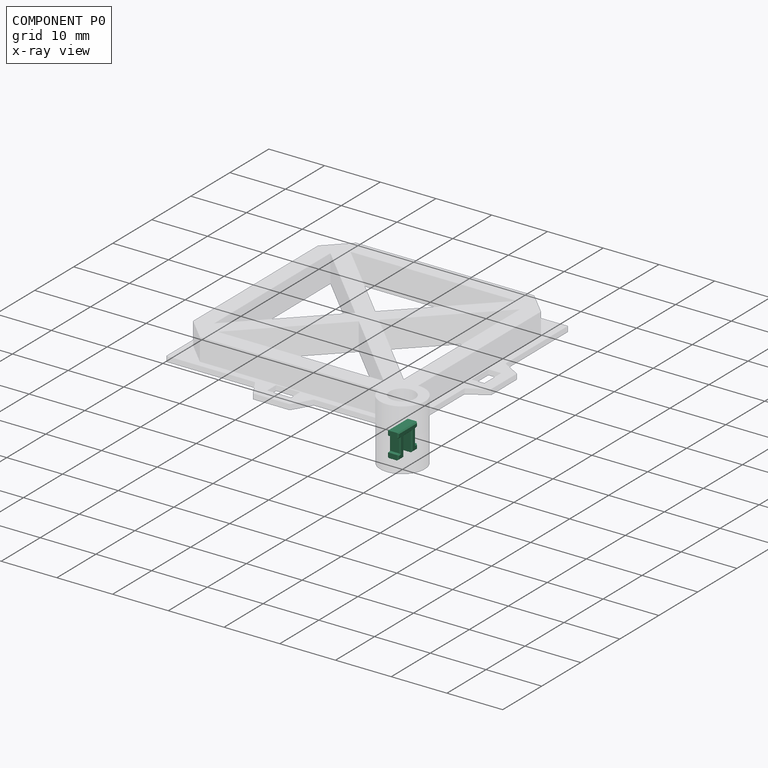
[diagram: component P0 — x-ray view]
COMPONENT P0 — recipe-attached ("Clip", modeled in this document).
Held by: resting contact with P1 (derived edge); resting contact with P2 (derived edge); resting contact with P3 (derived edge); resting contact with P4 (derived edge).
Construction recipe (the document's own serialized feature program — sketch geometry with constraints, then the solid features built on it; lengths are millimeters unless a unit is written):

FEATURE [Sketcher::SketchObject] Sketch
  ArcFitTolerance = 0
  AttachmentSupport = -> [YZ_Plane]
  FullyConstrained = true
  MakeInternals = false
  MapMode = 5
  Placement = pos=(0,0,0) rot=(0.57735,0.57735,0.57735;2.0944rad)
  expr: Constraints[15] = <<Dimensions>>.shade_clip_length / 2
  sketch-geometry (10):
    g0: LineSegment StartX=-1 StartY=0 StartZ=0 EndX=-1 EndY=-3.5 EndZ=0
    g1: LineSegment StartX=-2.5 StartY=-2.58816 StartZ=0 EndX=-2 EndY=-2.5 EndZ=0
    g2: LineSegment StartX=-2 StartY=-2.5 StartZ=0 EndX=-2 EndY=0 EndZ=0
    g3: LineSegment StartX=-2 StartY=0 StartZ=0 EndX=-2.5 EndY=0.0881635 EndZ=0
    g4: LineSegment StartX=-2.5 StartY=-2.58816 StartZ=0 EndX=-2.5 EndY=-3.5 EndZ=0
    g5: LineSegment StartX=-2.5 StartY=-3.5 StartZ=0 EndX=-1 EndY=-3.5 EndZ=0
    g6: LineSegment StartX=-2.5 StartY=0.0881635 StartZ=0 EndX=-2.5 EndY=1 EndZ=0
    g7: LineSegment StartX=-2.5 StartY=1 StartZ=0 EndX=0 EndY=1 EndZ=0
    g8: LineSegment StartX=-1 StartY=0 StartZ=0 EndX=0 EndY=0 EndZ=0
    g9: LineSegment StartX=0 StartY=0 StartZ=0 EndX=0 EndY=1 EndZ=0
  constraints (29):
    c: Vertical(g0)
    c: Coincident(g1,g2)
    c: Vertical(g2)
    c: Coincident(g2,g3)
    c: DistanceX(g2,g0) = 1
    c: DistanceX(g1,g1) = 0.5
    c: DistanceY(g2,g2) = 2.5
    c: PointOnObject(g0,g-1)
    c: PointOnObject(g2,g-1)
    c: Coincident(g4,g1)
    c: Vertical(g4)
    c: Coincident(g5,g4)
    c: Angle(g3,g2) = 1.74533
    c: DistanceX(g3,g2) = 0.5
    c: Angle(g2,g1) = 1.74533
    c: DistanceX(g2,g-1) = 2
    c: Coincident(g6,g3)
    c: Vertical(g6)
    c: Coincident(g7,g6)
    c: Horizontal(g7)
    c: Coincident(g8,g0)
    c: Coincident(g8,g-1)
    c: Coincident(g9,g8)
    c: Coincident(g9,g7)
    c: Vertical(g9)
    c: DistanceY(g8,g7) = 1
    c: Coincident(g0,g5)
    c: Horizontal(g5)
    c: DistanceY(g4,g1) = 1
FEATURE [PartDesign::Pad] Pad
  Direction = (1,0,0)
  Length = 2
  Length2 = 10
  Midplane = true
  Placement = pos=(0,0,0) rot=(1,1,1;2.0944rad)
  Profile = -> Sketch
  ReferenceAxis = -> Sketch [N_Axis]
  Suppressed = false
  Type = 0
  expr: Length = <<Dimensions>>.shade_clip_width
FEATURE [PartDesign::Mirrored] Mirrored
  BaseFeature = -> Pad
  MirrorPlane = -> Sketch [V_Axis]
  Originals = -> [Pad]
  Placement = pos=(0,0,0) rot=(1,1,1;2.0944rad)
  Refine = true
  Suppressed = false
  TransformMode = 0
FEATURE [PartDesign::Chamfer] Chamfer
  Angle = 45
  Base = -> Mirrored [Face16,Face17]
  BaseFeature = -> Mirrored
  ChamferType = 0
  FlipDirection = false
  Placement = pos=(0,0,0) rot=(1,1,1;2.0944rad)
  Size = 0.2
  Size2 = 1
  SupportTransform = false
  Suppressed = false
  UseAllEdges = false
FEATURE [PartDesign::CoordinateSystem] LCS_Origin001
  AttacherType = Attacher::AttachEngine3D
  AttachmentSupport = -> [X_Axis]
  MapMode = 2
FEATURE [PartDesign::Body] Body  label="Clip"
  AllowCompound = false
  Group = -> [Sketch,Pad,Mirrored,Chamfer,LCS_Origin001]
  Origin = -> Origin
  Tip = -> Chamfer
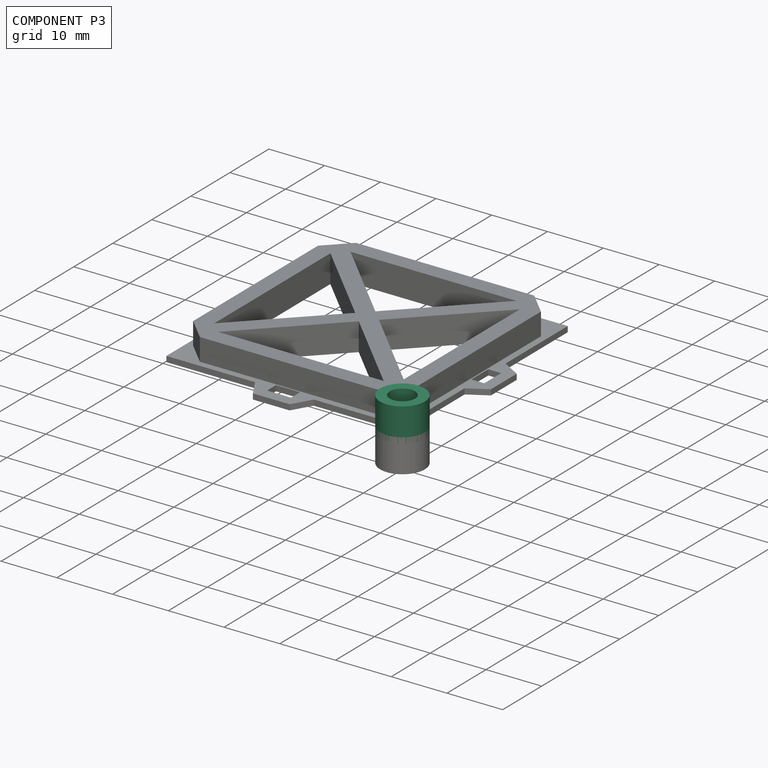
[diagram: component P3 — assembled]
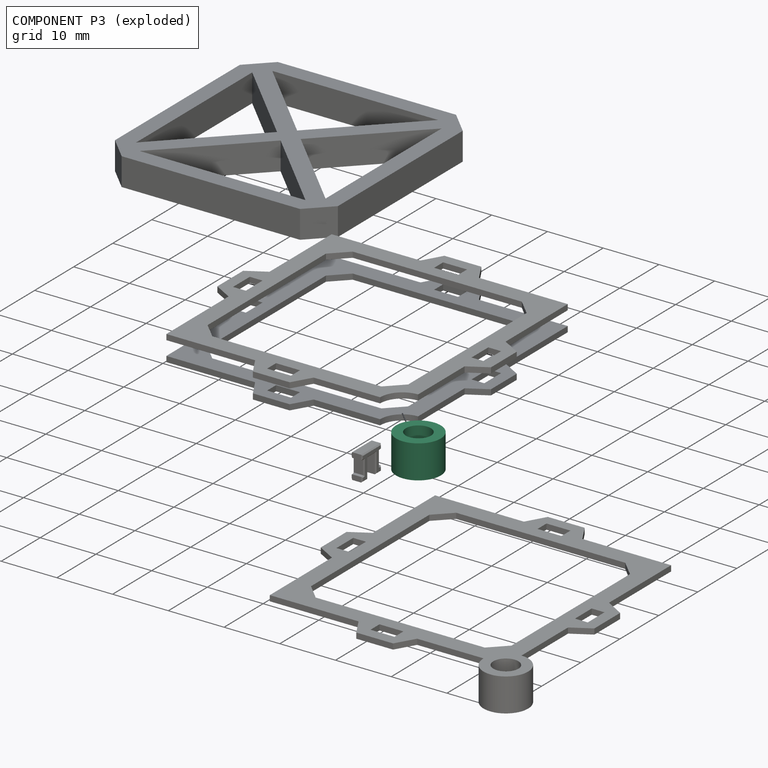
[diagram: component P3 — exploded]
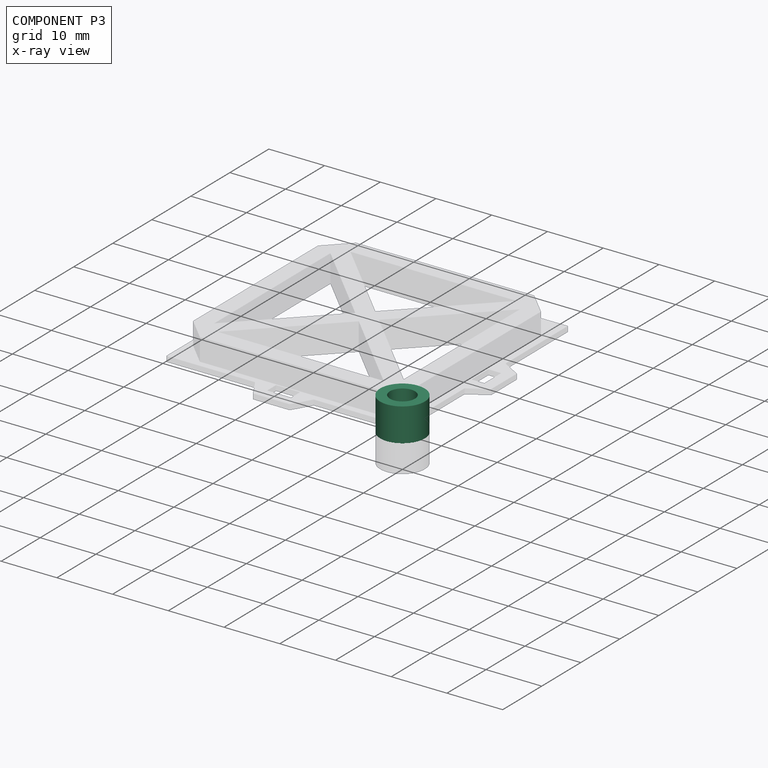
[diagram: component P3 — x-ray view]
COMPONENT P3 — recipe-attached ("Spacer", modeled in this document).
Held by: resting contact with P0 (derived edge); resting contact with P1 (derived edge); resting contact with P2 (derived edge); resting contact with P4 (derived edge); resting contact with P5 (derived edge).
Construction recipe (the document's own serialized feature program — sketch geometry with constraints, then the solid features built on it; lengths are millimeters unless a unit is written):

FEATURE [Sketcher::SketchObject] Sketch006  label="Sketch_Shaft"
  ArcFitTolerance = 0
  AttachmentSupport = -> [XY_Plane003]
  FullyConstrained = true
  MakeInternals = false
  MapMode = 5
  expr: Constraints[1] = <<Dimensions>>.shade_shaft_diameter
  sketch-geometry (1):
    g0: Circle CenterX=0 CenterY=0 CenterZ=0 NormalX=0 NormalY=0 NormalZ=1 AngleXU=0 Radius=2
  constraints (2):
    c: Coincident(g0,g-1)
    c: Diameter(g0) = 4
FEATURE [Sketcher::SketchObject] Sketch007  label="Sketch_Spacer"
  ArcFitTolerance = 0
  AttachmentSupport = -> [XY_Plane003]
  FullyConstrained = true
  MakeInternals = false
  MapMode = 5
  expr: Constraints[1] = <<Dimensions>>.shade_shaft_diameter + 4 mm
  sketch-geometry (1):
    g0: Circle CenterX=0 CenterY=0 CenterZ=0 NormalX=0 NormalY=0 NormalZ=1 AngleXU=0 Radius=4
  constraints (2):
    c: Coincident(g0,g-1)
    c: Diameter(g0) = 8
FEATURE [PartDesign::Pad] Pad003
  Direction = (0,0,1)
  Length = 6
  Length2 = 10
  Profile = -> Sketch007
  ReferenceAxis = -> Sketch007 [N_Axis]
  Suppressed = false
  Type = 0
  expr: Length = <<Dimensions>>.shade_spacer_length
FEATURE [PartDesign::Hole] Hole
  BaseFeature = -> Pad003
  CustomThreadClearance = 0
  Depth = 21.5677
  DepthType = 1
  Diameter = 4.5
  DrillForDepth = false
  DrillPoint = 1
  DrillPointAngle = 118
  HoleCutCountersinkAngle = 90
  HoleCutCustomValues = false
  HoleCutDepth = 0
  HoleCutDiameter = 6.1
  HoleCutType = 0
  ModelThread = false
  Profile = -> Sketch006
  Reversed = true
  Suppressed = false
  Tapered = false
  TaperedAngle = 90
  ThreadClass = 0
  ThreadDepth = 21.5677
  ThreadDepthType = 0
  ThreadDirection = 0
  ThreadFit = 0
  ThreadSize = 11
  ThreadType = 1
  Threaded = false
  UseCustomThreadClearance = false
FEATURE [PartDesign::CoordinateSystem] Local_CS  label="LCS_Bottom"
  AttacherType = Attacher::AttachEngine3D
  AttachmentSupport = -> [X_Axis003]
  MapMode = 2
FEATURE [PartDesign::CoordinateSystem] Local_CS001  label="LCS_Top"
  AttacherType = Attacher::AttachEngine3D
  AttachmentOffset = pos=(0,0,6) rot=(0,0,1;0rad)
  AttachmentSupport = -> [X_Axis003]
  MapMode = 2
  Placement = pos=(0,0,6) rot=(0,0,1;0rad)
  expr: .AttachmentOffset.Base.z = <<Dimensions>>.shade_spacer_length
FEATURE [PartDesign::Body] Body003  label="Spacer"
  AllowCompound = false
  Group = -> [Sketch006,Sketch007,Pad003,Hole,Local_CS,Local_CS001]
  Origin = -> Origin003
  Tip = -> Hole
PROVENANCE & LICENSES
Assembly and component geometry: a FreeCAD (.FCStd) document from a public repository crawl; components, placements and joints were extracted with FreeCAD and each solid tessellated.
Construction recipes: the document's own serialized feature recipes (and, for linked parts, the recipes of companion documents from the same project).
License: gpl-3.0.
Joints: native FreeCAD joints and A2plus constraints are mapped to standard mate types; edges marked 'derived from contact' connect touching components and are measured from the geometry, not modeled.
Verification: 5 of this assembly's 6 components carry a construction recipe (5 from this document itself); the rest are geometry-only. Every component's tessellation passed the extraction mesh gates (mesh-volume checksum against the B-rep where available, bounding-box inflation <= 2%).
Renders: orthographic iso camera (az 35 / el 25); the floor grid conveys scale (grid pitch printed in each image; no ruler). In the exploded view each component is displaced by its stored offset vector: the offsets alone carry the explosion direction (mate normal/axis signs are not orientation cues and do not encode it), and separation distances are assigned per mate-chain, not proportionally to assembly-order depth.
